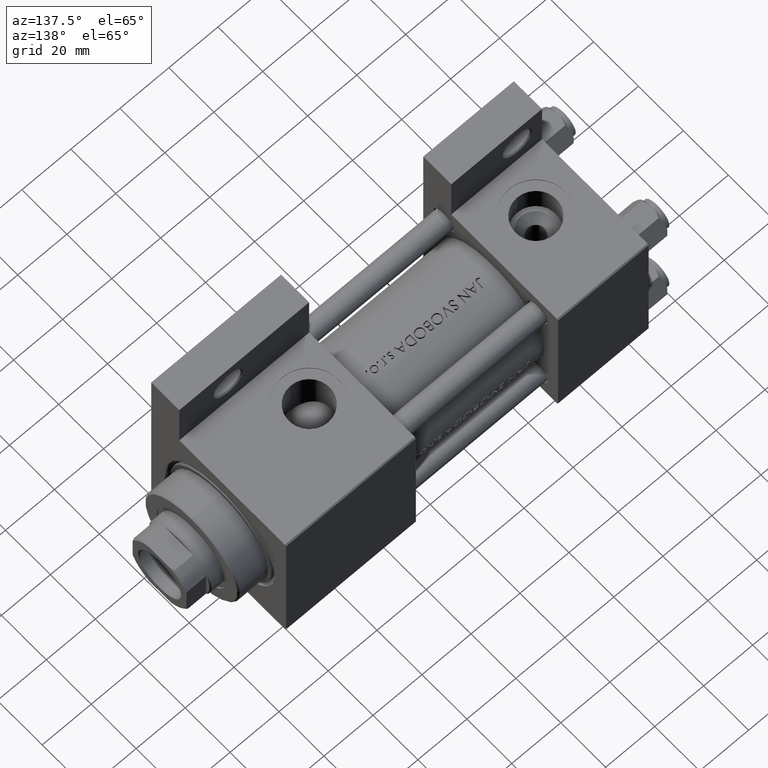
[diagram: clean part render]
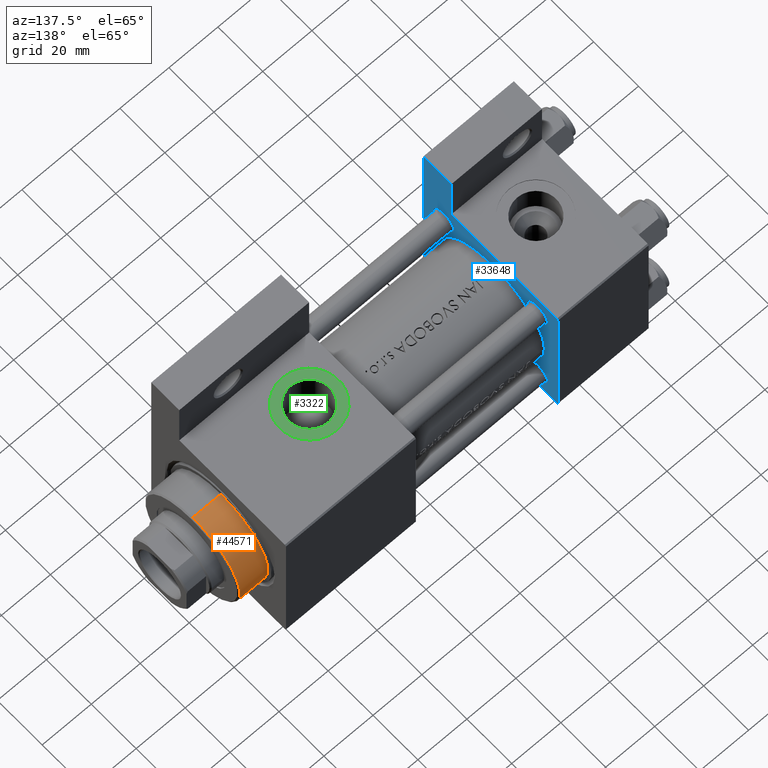
[diagram: same view with three faces highlighted in distinct colors, each labeled with its STEP entity id]
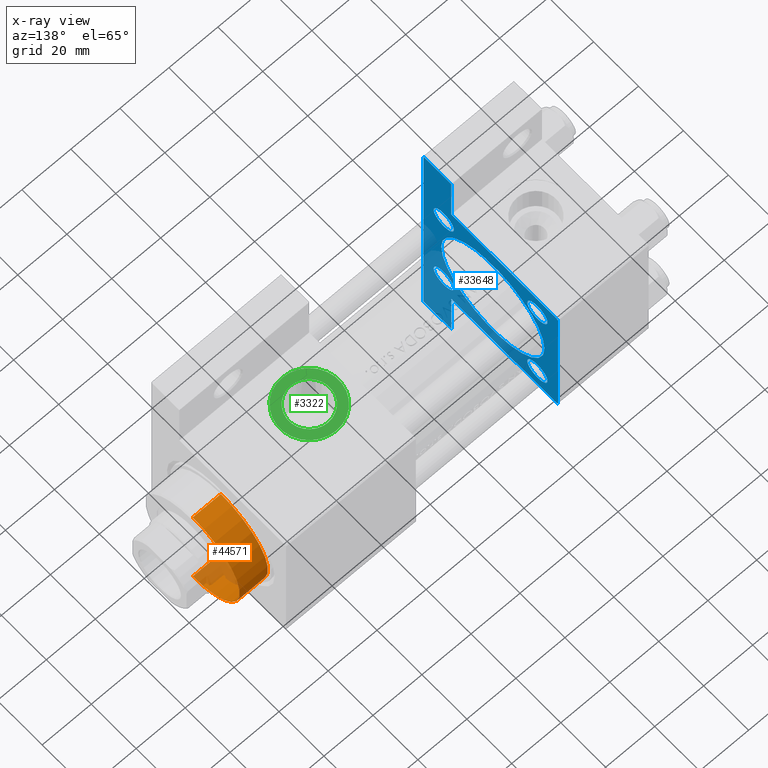
[diagram: x-ray of the same camera — body ghosted, the three highlighted faces saturated]
A machine part, auxiliary view with three faces highlighted in distinct colors.
The next image is the same camera in x-ray (body ghosted, the three faces saturated) — at least one of them is partly hidden behind the body in this view.
Their STEP definitions:

[orange] entity #44571 — the highlighted cylindrical surface (partial cylindrical patch) has radius 21 mm, axis along (-1, -0, 0).
#932 = ORIENTED_EDGE ( 'NONE', *, *, #16592, .T. ) ;
#1774 = DIRECTION ( 'NONE',  ( -0.000000000000000000, -0.000000000000000000, -1.000000000000000000 ) ) ;
#2076 = EDGE_CURVE ( 'NONE', #24131, #35662, #2504, .T. ) ;
#2094 = VECTOR ( 'NONE', #40135, 1000.000000000000000 ) ;
#2504 = LINE ( 'NONE', #9265, #39817 ) ;
#3885 = CARTESIAN_POINT ( 'NONE',  ( -21.00000000000000000, 0.000000000000000000, 28.69999999999999929 ) ) ;
#4183 = EDGE_CURVE ( 'NONE', #49276, #24131, #8029, .T. ) ;
#8029 = CIRCLE ( 'NONE', #8818, 21.00000000000000000 ) ;
#8818 = AXIS2_PLACEMENT_3D ( 'NONE', #16708, #12723, #42380 ) ;
#9265 = CARTESIAN_POINT ( 'NONE',  ( 21.00000000000000000, 2.571758278209441661E-15, 40.70000000000000284 ) ) ;
#12723 = DIRECTION ( 'NONE',  ( 0.000000000000000000, 0.000000000000000000, -1.000000000000000000 ) ) ;
#12822 = CARTESIAN_POINT ( 'NONE',  ( 0.000000000000000000, 0.000000000000000000, 28.69999999999999929 ) ) ;
#16592 = EDGE_CURVE ( 'NONE', #35662, #26918, #42523, .T. ) ;
#16708 = CARTESIAN_POINT ( 'NONE',  ( 0.000000000000000000, 0.000000000000000000, 40.19999999999998863 ) ) ;
#18117 = EDGE_LOOP ( 'NONE', ( #22380, #19888, #932, #37243 ) ) ;
#18168 = CARTESIAN_POINT ( 'NONE',  ( 0.000000000000000000, 0.000000000000000000, 40.70000000000000284 ) ) ;
#18897 = AXIS2_PLACEMENT_3D ( 'NONE', #18168, #29394, #44852 ) ;
#19361 = CARTESIAN_POINT ( 'NONE',  ( 21.00000000000000000, 2.571758278209441661E-15, 28.69999999999999929 ) ) ;
#19888 = ORIENTED_EDGE ( 'NONE', *, *, #2076, .T. ) ;
#22380 = ORIENTED_EDGE ( 'NONE', *, *, #4183, .T. ) ;
#23405 = AXIS2_PLACEMENT_3D ( 'NONE', #12822, #24020, #31513 ) ;
#23434 = CARTESIAN_POINT ( 'NONE',  ( 21.00000000000000000, 2.571758278209441661E-15, 40.19999999999998863 ) ) ;
#24020 = DIRECTION ( 'NONE',  ( 0.000000000000000000, 0.000000000000000000, 1.000000000000000000 ) ) ;
#24131 = VERTEX_POINT ( 'NONE', #23434 ) ;
#24922 = CARTESIAN_POINT ( 'NONE',  ( -21.00000000000000000, 0.000000000000000000, 40.70000000000000284 ) ) ;
#25885 = CYLINDRICAL_SURFACE ( 'NONE', #18897, 21.00000000000000000 ) ;
#26918 = VERTEX_POINT ( 'NONE', #3885 ) ;
#28924 = LINE ( 'NONE', #24922, #2094 ) ;
#29149 = FACE_OUTER_BOUND ( 'NONE', #18117, .T. ) ;
#29394 = DIRECTION ( 'NONE',  ( -0.000000000000000000, -0.000000000000000000, -1.000000000000000000 ) ) ;
#31513 = DIRECTION ( 'NONE',  ( 1.000000000000000000, 0.000000000000000000, 0.000000000000000000 ) ) ;
#35662 = VERTEX_POINT ( 'NONE', #19361 ) ;
#37243 = ORIENTED_EDGE ( 'NONE', *, *, #43094, .F. ) ;
#39817 = VECTOR ( 'NONE', #1774, 1000.000000000000000 ) ;
#40135 = DIRECTION ( 'NONE',  ( -0.000000000000000000, -0.000000000000000000, -1.000000000000000000 ) ) ;
#42380 = DIRECTION ( 'NONE',  ( 1.000000000000000000, 0.000000000000000000, 0.000000000000000000 ) ) ;
#42523 = CIRCLE ( 'NONE', #23405, 21.00000000000000000 ) ;
#43094 = EDGE_CURVE ( 'NONE', #49276, #26918, #28924, .T. ) ;
#44571 = ADVANCED_FACE ( 'NONE', ( #29149 ), #25885, .T. ) ;
#44852 = DIRECTION ( 'NONE',  ( -1.000000000000000000, 0.000000000000000000, 0.000000000000000000 ) ) ;
#48127 = CARTESIAN_POINT ( 'NONE',  ( -21.00000000000000000, 0.000000000000000000, 40.19999999999998863 ) ) ;
#49276 = VERTEX_POINT ( 'NONE', #48127 ) ;

[blue] entity #33648 — the highlighted planar face has unit normal (-1, 0, -0).
#5 = ORIENTED_EDGE ( 'NONE', *, *, #42681, .T. ) ;
#250 = VERTEX_POINT ( 'NONE', #14029 ) ;
#624 = VECTOR ( 'NONE', #18918, 1000.000000000000114 ) ;
#660 = VECTOR ( 'NONE', #24209, 1000.000000000000000 ) ;
#755 = DIRECTION ( 'NONE',  ( 0.000000000000000000, 0.000000000000000000, 1.000000000000000000 ) ) ;
#1025 = PLANE ( 'NONE',  #42158 ) ;
#1488 = EDGE_CURVE ( 'NONE', #14104, #13603, #48546, .T. ) ;
#1626 = CIRCLE ( 'NONE', #31105, 23.00000000000000000 ) ;
#1971 = ORIENTED_EDGE ( 'NONE', *, *, #44876, .T. ) ;
#2259 = EDGE_CURVE ( 'NONE', #23823, #22042, #34888, .T. ) ;
#2343 = EDGE_CURVE ( 'NONE', #250, #26393, #25571, .T. ) ;
#3701 = CARTESIAN_POINT ( 'NONE',  ( 37.00000000000000000, 29.49999999999999289, 30.00000000000000000 ) ) ;
#3931 = CARTESIAN_POINT ( 'NONE',  ( 37.00000000000000000, 29.99999999999999289, -30.00000000000000000 ) ) ;
#4043 = DIRECTION ( 'NONE',  ( -0.000000000000000000, 0.000000000000000000, 1.000000000000000000 ) ) ;
#4205 = CARTESIAN_POINT ( 'NONE',  ( 37.00000000000000000, -20.84999999999999076, -25.34999999999999432 ) ) ;
#4468 = CIRCLE ( 'NONE', #43499, 4.499999999999990230 ) ;
#4615 = ORIENTED_EDGE ( 'NONE', *, *, #47122, .T. ) ;
#5526 = CIRCLE ( 'NONE', #17489, 4.499999999999990230 ) ;
#5784 = DIRECTION ( 'NONE',  ( 1.000000000000000000, -0.000000000000000000, 0.000000000000000000 ) ) ;
#6082 = CARTESIAN_POINT ( 'NONE',  ( 37.00000000000001421, 51.50000000000000711, -17.49999999999999645 ) ) ;
#6275 = DIRECTION ( 'NONE',  ( 0.000000000000000000, -1.000000000000000000, -1.156482317317871725E-16 ) ) ;
#6537 = CARTESIAN_POINT ( 'NONE',  ( 37.00000000000000000, 29.49999999999999289, 30.00000000000000000 ) ) ;
#6624 = DIRECTION ( 'NONE',  ( 0.000000000000000000, 0.000000000000000000, 1.000000000000000000 ) ) ;
#6834 = DIRECTION ( 'NONE',  ( 0.000000000000000000, 0.000000000000000000, 1.000000000000000000 ) ) ;
#7002 = CARTESIAN_POINT ( 'NONE',  ( 37.00000000000000000, -20.84999999999999076, 16.35000000000001208 ) ) ;
#7202 = EDGE_CURVE ( 'NONE', #30364, #19524, #29602, .T. ) ;
#7952 = LINE ( 'NONE', #3701, #624 ) ;
#8447 = EDGE_CURVE ( 'NONE', #37308, #12355, #43991, .T. ) ;
#8660 = VECTOR ( 'NONE', #6275, 1000.000000000000000 ) ;
#8737 = ORIENTED_EDGE ( 'NONE', *, *, #1488, .T. ) ;
#8800 = ORIENTED_EDGE ( 'NONE', *, *, #8447, .T. ) ;
#9516 = VECTOR ( 'NONE', #39594, 1000.000000000000000 ) ;
#9526 = DIRECTION ( 'NONE',  ( 0.000000000000000000, 0.000000000000000000, 1.000000000000000000 ) ) ;
#9876 = CARTESIAN_POINT ( 'NONE',  ( 37.00000000000000000, 20.84999999999999787, -20.85000000000000142 ) ) ;
#10149 = VERTEX_POINT ( 'NONE', #24824 ) ;
#10217 = CIRCLE ( 'NONE', #36476, 4.499999999999990230 ) ;
#11812 = EDGE_CURVE ( 'NONE', #22042, #24943, #23650, .T. ) ;
#11884 = ORIENTED_EDGE ( 'NONE', *, *, #17447, .F. ) ;
#11999 = EDGE_CURVE ( 'NONE', #36475, #26393, #41090, .T. ) ;
#12019 = CARTESIAN_POINT ( 'NONE',  ( 37.00000000000000000, 29.99999999999999289, 30.00000000000000000 ) ) ;
#12061 = VECTOR ( 'NONE', #32764, 1000.000000000000000 ) ;
#12355 = VERTEX_POINT ( 'NONE', #4205 ) ;
#12442 = CARTESIAN_POINT ( 'NONE',  ( 37.00000000000000000, -20.84999999999999076, -20.85000000000000497 ) ) ;
#12920 = EDGE_LOOP ( 'NONE', ( #1971, #17390 ) ) ;
#13334 = LINE ( 'NONE', #6082, #12061 ) ;
#13603 = VERTEX_POINT ( 'NONE', #26843 ) ;
#13651 = CARTESIAN_POINT ( 'NONE',  ( 37.00000000000000000, -51.49999999999999289, 25.29310692155925366 ) ) ;
#14022 = CARTESIAN_POINT ( 'NONE',  ( 37.00000000000000000, 29.99999999999999289, 30.00000000000000000 ) ) ;
#14029 = CARTESIAN_POINT ( 'NONE',  ( 37.00000000000000000, -51.50000000000000000, -17.49999999999999645 ) ) ;
#14104 = VERTEX_POINT ( 'NONE', #26726 ) ;
#14958 = AXIS2_PLACEMENT_3D ( 'NONE', #34676, #38410, #755 ) ;
#15122 = VECTOR ( 'NONE', #46367, 1000.000000000000114 ) ;
#15520 = FACE_BOUND ( 'NONE', #12920, .T. ) ;
#15696 = DIRECTION ( 'NONE',  ( -1.000000000000000000, 0.000000000000000000, -0.000000000000000000 ) ) ;
#16253 = FACE_BOUND ( 'NONE', #35789, .T. ) ;
#16600 = EDGE_LOOP ( 'NONE', ( #31172, #33888, #19684, #33161, #23571, #42227, #43269, #19942, #29417, #24677 ) ) ;
#17367 = DIRECTION ( 'NONE',  ( -1.000000000000000000, 0.000000000000000000, -0.000000000000000000 ) ) ;
#17390 = ORIENTED_EDGE ( 'NONE', *, *, #7202, .T. ) ;
#17447 = EDGE_CURVE ( 'NONE', #30987, #18175, #30614, .T. ) ;
#17489 = AXIS2_PLACEMENT_3D ( 'NONE', #9876, #44526, #17844 ) ;
#17720 = AXIS2_PLACEMENT_3D ( 'NONE', #22863, #38072, #19142 ) ;
#17844 = DIRECTION ( 'NONE',  ( 0.000000000000000000, 0.000000000000000000, 1.000000000000000000 ) ) ;
#17985 = LINE ( 'NONE', #14022, #8660 ) ;
#18175 = VERTEX_POINT ( 'NONE', #30772 ) ;
#18918 = DIRECTION ( 'NONE',  ( 0.000000000000000000, -0.7071067811865474617, 0.7071067811865474617 ) ) ;
#19142 = DIRECTION ( 'NONE',  ( 0.000000000000000000, 0.000000000000000000, 1.000000000000000000 ) ) ;
#19145 = DIRECTION ( 'NONE',  ( 0.000000000000000000, -1.000000000000000000, -1.156482317317871725E-16 ) ) ;
#19524 = VERTEX_POINT ( 'NONE', #7002 ) ;
#19684 = ORIENTED_EDGE ( 'NONE', *, *, #11812, .T. ) ;
#19735 = FACE_BOUND ( 'NONE', #41771, .T. ) ;
#19942 = ORIENTED_EDGE ( 'NONE', *, *, #37778, .F. ) ;
#20152 = LINE ( 'NONE', #42344, #9516 ) ;
#20507 = CIRCLE ( 'NONE', #14958, 4.499999999999990230 ) ;
#21179 = EDGE_CURVE ( 'NONE', #10149, #36475, #43027, .T. ) ;
#21208 = DIRECTION ( 'NONE',  ( 0.000000000000000000, 0.000000000000000000, 1.000000000000000000 ) ) ;
#21885 = AXIS2_PLACEMENT_3D ( 'NONE', #39935, #5784, #9526 ) ;
#22042 = VERTEX_POINT ( 'NONE', #40524 ) ;
#22863 = CARTESIAN_POINT ( 'NONE',  ( 37.00000000000000000, -20.84999999999999076, -20.85000000000000497 ) ) ;
#22867 = AXIS2_PLACEMENT_3D ( 'NONE', #32597, #47818, #33324 ) ;
#23410 = VECTOR ( 'NONE', #39618, 1000.000000000000000 ) ;
#23571 = ORIENTED_EDGE ( 'NONE', *, *, #2343, .T. ) ;
#23650 = LINE ( 'NONE', #24405, #23410 ) ;
#23823 = VERTEX_POINT ( 'NONE', #33267 ) ;
#23964 = LINE ( 'NONE', #12019, #660 ) ;
#24209 = DIRECTION ( 'NONE',  ( 0.000000000000000000, 0.000000000000000000, -1.000000000000000000 ) ) ;
#24257 = CARTESIAN_POINT ( 'NONE',  ( 37.00000000000000000, 29.99999999999999289, 29.50000000000000000 ) ) ;
#24405 = CARTESIAN_POINT ( 'NONE',  ( 37.00000000000000000, -30.00000000000000000, 29.99999999999999289 ) ) ;
#24677 = ORIENTED_EDGE ( 'NONE', *, *, #25330, .T. ) ;
#24824 = CARTESIAN_POINT ( 'NONE',  ( 37.00000000000001421, 51.50000000000000000, -17.49999999999999645 ) ) ;
#24943 = VERTEX_POINT ( 'NONE', #29225 ) ;
#25011 = EDGE_CURVE ( 'NONE', #13603, #14104, #20507, .T. ) ;
#25330 = EDGE_CURVE ( 'NONE', #36041, #48953, #7952, .T. ) ;
#25571 = LINE ( 'NONE', #13651, #26281 ) ;
#25587 = CARTESIAN_POINT ( 'NONE',  ( 37.00000000000000000, 20.84999999999999787, -16.35000000000001208 ) ) ;
#25918 = CARTESIAN_POINT ( 'NONE',  ( 37.00000000000001421, 51.50000000000000000, -30.00000000000001421 ) ) ;
#26270 = CARTESIAN_POINT ( 'NONE',  ( 37.00000000000000000, 20.84999999999999787, -20.85000000000000142 ) ) ;
#26281 = VECTOR ( 'NONE', #40786, 1000.000000000000000 ) ;
#26393 = VERTEX_POINT ( 'NONE', #26686 ) ;
#26686 = CARTESIAN_POINT ( 'NONE',  ( 37.00000000000000000, -51.50000000000000000, -29.99999999999999289 ) ) ;
#26726 = CARTESIAN_POINT ( 'NONE',  ( 37.00000000000000000, 20.84999999999999787, 25.34999999999999076 ) ) ;
#26843 = CARTESIAN_POINT ( 'NONE',  ( 37.00000000000000000, 20.84999999999999787, 16.35000000000001208 ) ) ;
#26971 = DIRECTION ( 'NONE',  ( -1.000000000000000000, 0.000000000000000000, -0.000000000000000000 ) ) ;
#27233 = CARTESIAN_POINT ( 'NONE',  ( 37.00000000000000000, 0.000000000000000000, 24.00000000000000000 ) ) ;
#27403 = VECTOR ( 'NONE', #19145, 1000.000000000000000 ) ;
#27550 = ORIENTED_EDGE ( 'NONE', *, *, #31659, .T. ) ;
#27636 = DIRECTION ( 'NONE',  ( 0.000000000000000000, 0.000000000000000000, 1.000000000000000000 ) ) ;
#28349 = ORIENTED_EDGE ( 'NONE', *, *, #25011, .T. ) ;
#29225 = CARTESIAN_POINT ( 'NONE',  ( 37.00000000000000000, -30.00000000000000000, -17.49999999999999645 ) ) ;
#29417 = ORIENTED_EDGE ( 'NONE', *, *, #29523, .F. ) ;
#29523 = EDGE_CURVE ( 'NONE', #36041, #30964, #23964, .T. ) ;
#29602 = CIRCLE ( 'NONE', #32809, 4.499999999999990230 ) ;
#30012 = DIRECTION ( 'NONE',  ( -1.000000000000000000, 0.000000000000000000, -0.000000000000000000 ) ) ;
#30364 = VERTEX_POINT ( 'NONE', #33917 ) ;
#30477 = FACE_BOUND ( 'NONE', #41830, .T. ) ;
#30614 = CIRCLE ( 'NONE', #21885, 23.00000000000000000 ) ;
#30718 = CARTESIAN_POINT ( 'NONE',  ( 37.00000000000000000, 0.000000000000000000, 0.000000000000000000 ) ) ;
#30772 = CARTESIAN_POINT ( 'NONE',  ( 37.00000000000000000, 2.816687638038911957E-15, -22.00000000000000000 ) ) ;
#30964 = VERTEX_POINT ( 'NONE', #30983 ) ;
#30983 = CARTESIAN_POINT ( 'NONE',  ( 37.00000000000000711, 30.00000000000001066, -17.49999999999999645 ) ) ;
#30987 = VERTEX_POINT ( 'NONE', #27233 ) ;
#31105 = AXIS2_PLACEMENT_3D ( 'NONE', #37854, #49354, #45611 ) ;
#31172 = ORIENTED_EDGE ( 'NONE', *, *, #31215, .T. ) ;
#31215 = EDGE_CURVE ( 'NONE', #48953, #23823, #17985, .T. ) ;
#31547 = VECTOR ( 'NONE', #38531, 1000.000000000000000 ) ;
#31659 = EDGE_CURVE ( 'NONE', #47572, #39774, #5526, .T. ) ;
#31781 = EDGE_CURVE ( 'NONE', #250, #24943, #20152, .T. ) ;
#32597 = CARTESIAN_POINT ( 'NONE',  ( 37.00000000000000000, -20.84999999999999076, 20.85000000000000497 ) ) ;
#32601 = AXIS2_PLACEMENT_3D ( 'NONE', #33054, #17367, #6624 ) ;
#32764 = DIRECTION ( 'NONE',  ( 3.227392513445224290E-16, 1.000000000000000000, 0.000000000000000000 ) ) ;
#32809 = AXIS2_PLACEMENT_3D ( 'NONE', #44156, #40647, #21208 ) ;
#33054 = CARTESIAN_POINT ( 'NONE',  ( 37.00000000000000000, 20.84999999999999787, 20.85000000000000142 ) ) ;
#33161 = ORIENTED_EDGE ( 'NONE', *, *, #31781, .F. ) ;
#33267 = CARTESIAN_POINT ( 'NONE',  ( 37.00000000000000000, -29.49999999999998579, 29.99999999999999289 ) ) ;
#33324 = DIRECTION ( 'NONE',  ( 0.000000000000000000, 0.000000000000000000, 1.000000000000000000 ) ) ;
#33648 = ADVANCED_FACE ( 'NONE', ( #34463, #30477, #15520, #19735, #16253, #35200 ), #1025, .F. ) ;
#33888 = ORIENTED_EDGE ( 'NONE', *, *, #2259, .T. ) ;
#33917 = CARTESIAN_POINT ( 'NONE',  ( 37.00000000000000000, -20.84999999999999076, 25.34999999999999432 ) ) ;
#34463 = FACE_BOUND ( 'NONE', #37301, .T. ) ;
#34676 = CARTESIAN_POINT ( 'NONE',  ( 37.00000000000000000, 20.84999999999999787, 20.85000000000000142 ) ) ;
#34888 = LINE ( 'NONE', #42116, #15122 ) ;
#35200 = FACE_OUTER_BOUND ( 'NONE', #16600, .T. ) ;
#35299 = EDGE_CURVE ( 'NONE', #18175, #30987, #1626, .T. ) ;
#35789 = EDGE_LOOP ( 'NONE', ( #11884, #47067 ) ) ;
#36041 = VERTEX_POINT ( 'NONE', #24257 ) ;
#36475 = VERTEX_POINT ( 'NONE', #25918 ) ;
#36476 = AXIS2_PLACEMENT_3D ( 'NONE', #12442, #15696, #27636 ) ;
#37301 = EDGE_LOOP ( 'NONE', ( #4615, #8800 ) ) ;
#37308 = VERTEX_POINT ( 'NONE', #43924 ) ;
#37778 = EDGE_CURVE ( 'NONE', #30964, #10149, #13334, .T. ) ;
#37854 = CARTESIAN_POINT ( 'NONE',  ( 37.00000000000000000, 0.000000000000000000, 1.000000000000000888 ) ) ;
#38072 = DIRECTION ( 'NONE',  ( -1.000000000000000000, 0.000000000000000000, -0.000000000000000000 ) ) ;
#38410 = DIRECTION ( 'NONE',  ( -1.000000000000000000, 0.000000000000000000, -0.000000000000000000 ) ) ;
#38531 = DIRECTION ( 'NONE',  ( 0.000000000000000000, -1.734723475976807094E-16, -1.000000000000000000 ) ) ;
#38770 = CARTESIAN_POINT ( 'NONE',  ( 37.00000000000001421, 51.50000000000000711, 25.29310692155923590 ) ) ;
#39594 = DIRECTION ( 'NONE',  ( -0.000000000000000000, 1.000000000000000000, 0.000000000000000000 ) ) ;
#39618 = DIRECTION ( 'NONE',  ( 0.000000000000000000, 0.000000000000000000, -1.000000000000000000 ) ) ;
#39774 = VERTEX_POINT ( 'NONE', #25587 ) ;
#39935 = CARTESIAN_POINT ( 'NONE',  ( 37.00000000000000000, 0.000000000000000000, 1.000000000000000888 ) ) ;
#40389 = CIRCLE ( 'NONE', #22867, 4.499999999999990230 ) ;
#40524 = CARTESIAN_POINT ( 'NONE',  ( 37.00000000000000000, -30.00000000000000000, 29.49999999999999289 ) ) ;
#40647 = DIRECTION ( 'NONE',  ( -1.000000000000000000, 0.000000000000000000, -0.000000000000000000 ) ) ;
#40786 = DIRECTION ( 'NONE',  ( 0.000000000000000000, -1.734723475976807094E-16, -1.000000000000000000 ) ) ;
#41090 = LINE ( 'NONE', #3931, #27403 ) ;
#41771 = EDGE_LOOP ( 'NONE', ( #28349, #8737 ) ) ;
#41830 = EDGE_LOOP ( 'NONE', ( #27550, #5 ) ) ;
#42116 = CARTESIAN_POINT ( 'NONE',  ( 37.00000000000000000, -30.00000000000000000, 29.49999999999999289 ) ) ;
#42158 = AXIS2_PLACEMENT_3D ( 'NONE', #30718, #26971, #4043 ) ;
#42227 = ORIENTED_EDGE ( 'NONE', *, *, #11999, .F. ) ;
#42344 = CARTESIAN_POINT ( 'NONE',  ( 37.00000000000000000, -51.49999999999999289, -17.49999999999999645 ) ) ;
#42681 = EDGE_CURVE ( 'NONE', #39774, #47572, #4468, .T. ) ;
#42793 = CARTESIAN_POINT ( 'NONE',  ( 37.00000000000000000, 20.84999999999999787, -25.34999999999999076 ) ) ;
#43027 = LINE ( 'NONE', #38770, #31547 ) ;
#43269 = ORIENTED_EDGE ( 'NONE', *, *, #21179, .F. ) ;
#43499 = AXIS2_PLACEMENT_3D ( 'NONE', #26270, #30012, #6834 ) ;
#43924 = CARTESIAN_POINT ( 'NONE',  ( 37.00000000000000000, -20.84999999999999076, -16.35000000000001208 ) ) ;
#43991 = CIRCLE ( 'NONE', #17720, 4.499999999999990230 ) ;
#44156 = CARTESIAN_POINT ( 'NONE',  ( 37.00000000000000000, -20.84999999999999076, 20.85000000000000497 ) ) ;
#44526 = DIRECTION ( 'NONE',  ( -1.000000000000000000, 0.000000000000000000, -0.000000000000000000 ) ) ;
#44876 = EDGE_CURVE ( 'NONE', #19524, #30364, #40389, .T. ) ;
#45611 = DIRECTION ( 'NONE',  ( 0.000000000000000000, 0.000000000000000000, 1.000000000000000000 ) ) ;
#46367 = DIRECTION ( 'NONE',  ( -0.000000000000000000, -0.7071067811865474617, -0.7071067811865474617 ) ) ;
#47067 = ORIENTED_EDGE ( 'NONE', *, *, #35299, .F. ) ;
#47122 = EDGE_CURVE ( 'NONE', #12355, #37308, #10217, .T. ) ;
#47572 = VERTEX_POINT ( 'NONE', #42793 ) ;
#47818 = DIRECTION ( 'NONE',  ( -1.000000000000000000, 0.000000000000000000, -0.000000000000000000 ) ) ;
#48546 = CIRCLE ( 'NONE', #32601, 4.499999999999990230 ) ;
#48953 = VERTEX_POINT ( 'NONE', #6537 ) ;
#49354 = DIRECTION ( 'NONE',  ( 1.000000000000000000, -0.000000000000000000, 0.000000000000000000 ) ) ;

[green] entity #3322 — the highlighted planar face has unit normal (0, -0, 1).
#1336 = DIRECTION ( 'NONE',  ( 0.000000000000000000, -1.000000000000000000, -8.673617379884036705E-17 ) ) ;
#3322 = ADVANCED_FACE ( 'NONE', ( #34353, #10685 ), #45088, .T. ) ;
#5598 = DIRECTION ( 'NONE',  ( 0.000000000000000000, -1.000000000000000000, -8.673617379884036705E-17 ) ) ;
#7582 = ORIENTED_EDGE ( 'NONE', *, *, #41344, .T. ) ;
#8850 = CARTESIAN_POINT ( 'NONE',  ( 111.0000000000000000, -29.80000000000000071, 1.734723475976808635E-17 ) ) ;
#8919 = DIRECTION ( 'NONE',  ( 0.000000000000000000, -1.000000000000000000, -8.673617379884036705E-17 ) ) ;
#9445 = AXIS2_PLACEMENT_3D ( 'NONE', #46494, #1336, #28278 ) ;
#9609 = VERTEX_POINT ( 'NONE', #44365 ) ;
#9984 = AXIS2_PLACEMENT_3D ( 'NONE', #8850, #5598, #20804 ) ;
#10685 = FACE_OUTER_BOUND ( 'NONE', #18482, .T. ) ;
#10829 = DIRECTION ( 'NONE',  ( 0.000000000000000000, -1.000000000000000000, -8.673617379884036705E-17 ) ) ;
#12658 = DIRECTION ( 'NONE',  ( 0.000000000000000000, 8.673617379884036705E-17, -1.000000000000000000 ) ) ;
#13071 = ORIENTED_EDGE ( 'NONE', *, *, #14871, .F. ) ;
#14871 = EDGE_CURVE ( 'NONE', #21035, #31365, #47402, .T. ) ;
#15135 = CARTESIAN_POINT ( 'NONE',  ( 111.0000000000000000, -29.80000000000000071, 8.329999999999998295 ) ) ;
#18482 = EDGE_LOOP ( 'NONE', ( #46871, #7582 ) ) ;
#20146 = ORIENTED_EDGE ( 'NONE', *, *, #30017, .F. ) ;
#20760 = CIRCLE ( 'NONE', #28736, 11.99999999999998934 ) ;
#20804 = DIRECTION ( 'NONE',  ( 0.000000000000000000, 0.000000000000000000, -1.000000000000000000 ) ) ;
#21035 = VERTEX_POINT ( 'NONE', #15135 ) ;
#23857 = CARTESIAN_POINT ( 'NONE',  ( 111.0000000000000000, -29.80000000000000071, 1.734723475976807403E-17 ) ) ;
#25331 = DIRECTION ( 'NONE',  ( 0.000000000000000000, 0.000000000000000000, -1.000000000000000000 ) ) ;
#25579 = DIRECTION ( 'NONE',  ( 0.000000000000000000, -1.000000000000000000, -8.673617379884036705E-17 ) ) ;
#28278 = DIRECTION ( 'NONE',  ( 0.000000000000000000, 0.000000000000000000, -1.000000000000000000 ) ) ;
#28414 = CARTESIAN_POINT ( 'NONE',  ( 111.0000000000000000, -29.80000000000000071, -8.329999999999998295 ) ) ;
#28602 = CARTESIAN_POINT ( 'NONE',  ( 111.0000000000000000, -29.80000000000000071, 1.734723475976807403E-17 ) ) ;
#28736 = AXIS2_PLACEMENT_3D ( 'NONE', #37493, #10829, #41487 ) ;
#29585 = CARTESIAN_POINT ( 'NONE',  ( 111.0000000000000000, -29.80000000000000071, -11.99999999999998934 ) ) ;
#30017 = EDGE_CURVE ( 'NONE', #31365, #21035, #30927, .T. ) ;
#30927 = CIRCLE ( 'NONE', #9445, 8.329999999999998295 ) ;
#31365 = VERTEX_POINT ( 'NONE', #28414 ) ;
#34353 = FACE_BOUND ( 'NONE', #40911, .T. ) ;
#34980 = EDGE_CURVE ( 'NONE', #39883, #9609, #20760, .T. ) ;
#37080 = AXIS2_PLACEMENT_3D ( 'NONE', #28602, #25579, #25331 ) ;
#37493 = CARTESIAN_POINT ( 'NONE',  ( 111.0000000000000000, -29.80000000000000071, 1.734723475976807403E-17 ) ) ;
#39883 = VERTEX_POINT ( 'NONE', #29585 ) ;
#40911 = EDGE_LOOP ( 'NONE', ( #20146, #13071 ) ) ;
#41344 = EDGE_CURVE ( 'NONE', #9609, #39883, #47456, .T. ) ;
#41487 = DIRECTION ( 'NONE',  ( 0.000000000000000000, 0.000000000000000000, -1.000000000000000000 ) ) ;
#44365 = CARTESIAN_POINT ( 'NONE',  ( 111.0000000000000000, -29.80000000000000071, 11.99999999999998934 ) ) ;
#45088 = PLANE ( 'NONE',  #47021 ) ;
#46494 = CARTESIAN_POINT ( 'NONE',  ( 111.0000000000000000, -29.80000000000000071, 1.734723475976808635E-17 ) ) ;
#46871 = ORIENTED_EDGE ( 'NONE', *, *, #34980, .T. ) ;
#47021 = AXIS2_PLACEMENT_3D ( 'NONE', #23857, #8919, #12658 ) ;
#47402 = CIRCLE ( 'NONE', #9984, 8.329999999999998295 ) ;
#47456 = CIRCLE ( 'NONE', #37080, 11.99999999999998934 ) ;